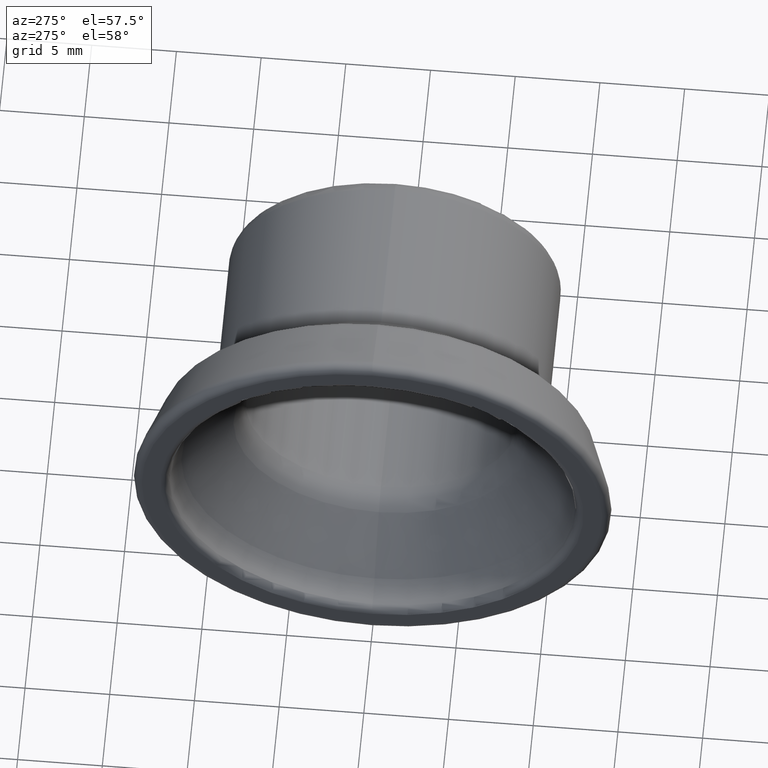
[diagram: clean part render]
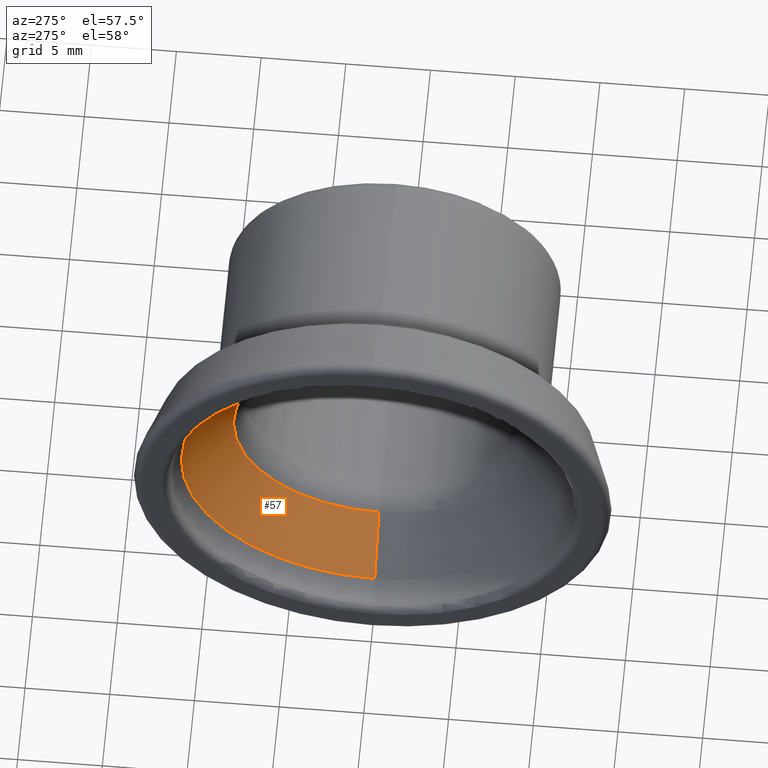
[diagram: same view with one face highlighted and labeled with its STEP entity id]
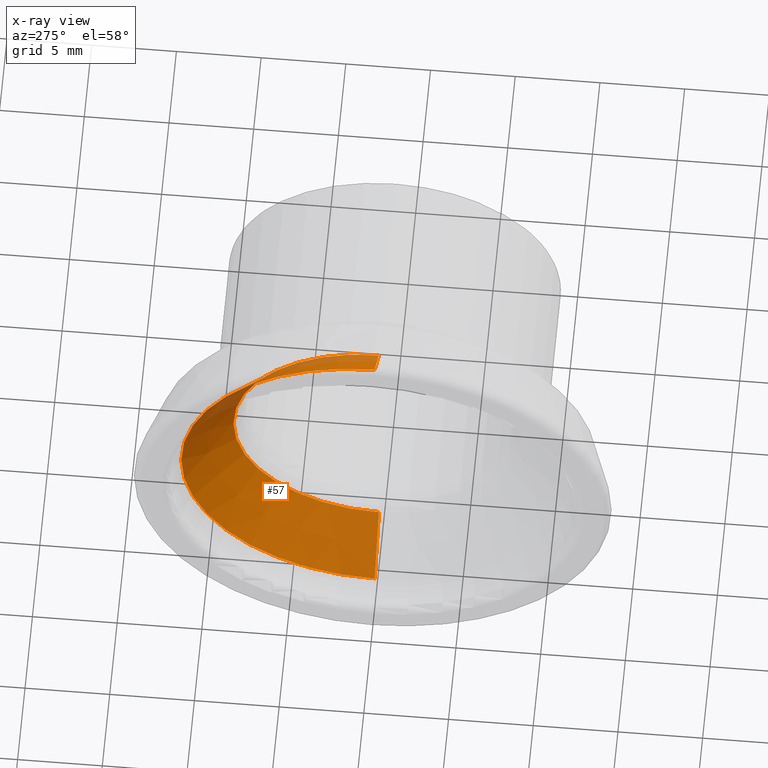
[diagram: x-ray of the same camera — body ghosted, the highlighted face saturated]
A machine part, auxiliary view. The second image highlights one B-rep face of the part: STEP entity #57.
The next image is the same camera in x-ray: the body ghosted, the highlighted face saturated — about 6% of this face is hidden behind the body in this view.
In plain terms, the highlighted conical surface has half-angle 45 deg.
Its self-contained STEP definition (entity closure, byte-faithful):
#21=CONICAL_SURFACE('',#512,8.,0.785398163397449);
#57=ADVANCED_FACE('',(#86),#21,.F.);
#86=FACE_OUTER_BOUND('',#120,.F.);
#120=EDGE_LOOP('',(#186,#187,#188,#189));
#186=ORIENTED_EDGE('',*,*,#324,.F.);
#187=ORIENTED_EDGE('',*,*,#322,.F.);
#188=ORIENTED_EDGE('',*,*,#323,.T.);
#189=ORIENTED_EDGE('',*,*,#320,.T.);
#271=LINE('',#769,#283);
#272=LINE('',#770,#284);
#283=VECTOR('',#597,4.);
#284=VECTOR('',#598,4.);
#320=EDGE_CURVE('',#403,#404,#372,.T.);
#322=EDGE_CURVE('',#401,#402,#374,.T.);
#323=EDGE_CURVE('',#401,#403,#271,.T.);
#324=EDGE_CURVE('',#402,#404,#272,.T.);
#372=CIRCLE('',#479,11.4142135623731);
#374=CIRCLE('',#481,8.5857864376269);
#401=VERTEX_POINT('',#711);
#402=VERTEX_POINT('',#712);
#403=VERTEX_POINT('',#713);
#404=VERTEX_POINT('',#714);
#479=AXIS2_PLACEMENT_3D('',#766,#591,#592);
#481=AXIS2_PLACEMENT_3D('',#768,#595,#596);
#512=AXIS2_PLACEMENT_3D('',#805,#664,#663);
#591=DIRECTION('',(1.,0.,0.));
#592=DIRECTION('',(0.,0.,-1.));
#595=DIRECTION('',(1.,0.,0.));
#596=DIRECTION('',(0.,0.,-1.));
#597=DIRECTION('',(-0.707106781186548,0.,-0.707106781186548));
#598=DIRECTION('',(-0.707106781186548,0.,0.707106781186548));
#663=DIRECTION('',(0.,0.,-1.));
#664=DIRECTION('',(-1.,0.,0.));
#711=CARTESIAN_POINT('',(55.1292135754722,-49.9999958811694,-8.5857865648041));
#712=CARTESIAN_POINT('',(55.1292135754722,-49.9999958811694,8.5857863104497));
#713=CARTESIAN_POINT('',(52.300786450726,-49.9999958811694,-11.4142136895503));
#714=CARTESIAN_POINT('',(52.300786450726,-49.9999958811694,11.4142134351959));
#766=CARTESIAN_POINT('',(52.300786450726,-49.9999958811694,-1.27177200680628E-07));
#768=CARTESIAN_POINT('',(55.1292135754722,-49.9999958811694,-1.27177200507437E-07));
#769=CARTESIAN_POINT('',(55.1292135754722,-49.9999958811694,-8.5857865648041));
#770=CARTESIAN_POINT('',(55.1292135754722,-49.9999958811694,8.5857863104497));
#805=CARTESIAN_POINT('',(55.7150000130991,-49.9999958811694,-1.27177200471568E-07));